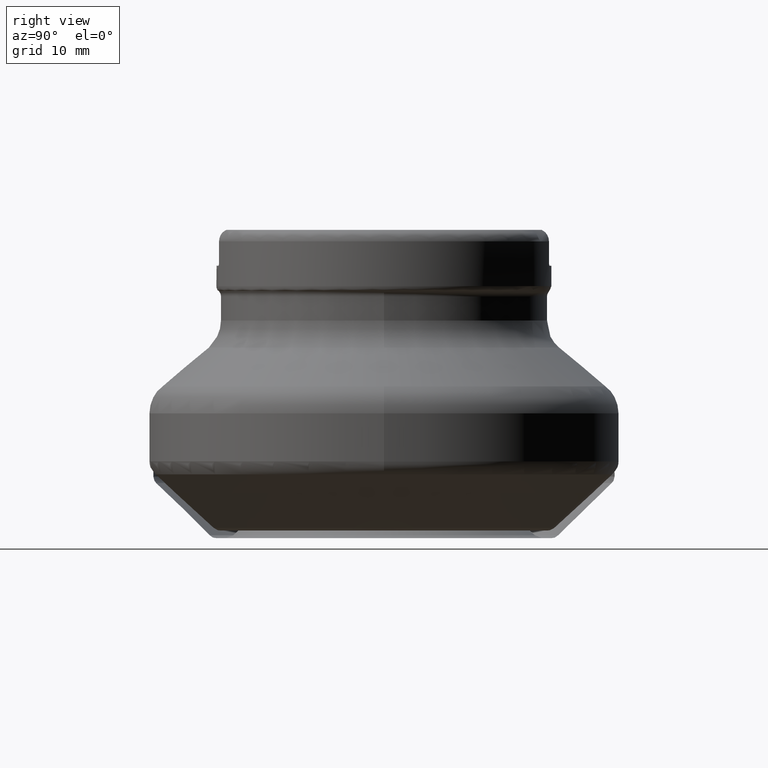
[diagram: clean part render]
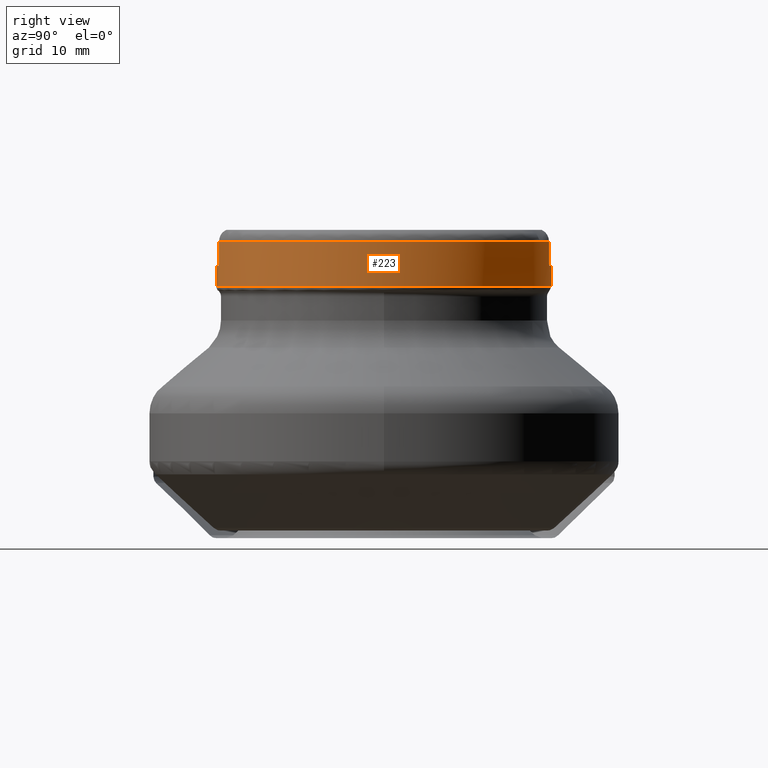
[diagram: same view with one face highlighted and labeled with its STEP entity id]
A machine part, right view. The second image highlights one B-rep face of the part: STEP entity #223.
In plain terms, the highlighted cylindrical surface (bore or boss wall) has radius 19 mm, axis along (0, 0, 1).
Its self-contained STEP definition (entity closure, byte-faithful):
#223=ADVANCED_FACE('',(#372,#373),#297,.T.);
#297=CYLINDRICAL_SURFACE('',#1179,19.);
#308=LINE('',#1791,#340);
#309=LINE('',#1829,#341);
#310=LINE('',#1833,#342);
#311=LINE('',#1871,#343);
#340=VECTOR('',#1299,1.);
#341=VECTOR('',#1302,1.);
#342=VECTOR('',#1305,1.);
#343=VECTOR('',#1308,1.);
#372=FACE_BOUND('',#476,.T.);
#373=FACE_BOUND('',#477,.T.);
#476=EDGE_LOOP('',(#602));
#477=EDGE_LOOP('',(#603,#604,#605,#606,#607,#608,#609,#610,#611,#612,#613,
#614));
#602=ORIENTED_EDGE('',*,*,#931,.T.);
#603=ORIENTED_EDGE('',*,*,#932,.T.);
#604=ORIENTED_EDGE('',*,*,#933,.T.);
#605=ORIENTED_EDGE('',*,*,#934,.F.);
#606=ORIENTED_EDGE('',*,*,#935,.T.);
#607=ORIENTED_EDGE('',*,*,#936,.F.);
#608=ORIENTED_EDGE('',*,*,#937,.T.);
#609=ORIENTED_EDGE('',*,*,#938,.T.);
#610=ORIENTED_EDGE('',*,*,#939,.T.);
#611=ORIENTED_EDGE('',*,*,#940,.F.);
#612=ORIENTED_EDGE('',*,*,#941,.T.);
#613=ORIENTED_EDGE('',*,*,#942,.F.);
#614=ORIENTED_EDGE('',*,*,#943,.T.);
#836=VERTEX_POINT('',#1787);
#837=VERTEX_POINT('',#1789);
#838=VERTEX_POINT('',#1790);
#839=VERTEX_POINT('',#1792);
#840=VERTEX_POINT('',#1809);
#841=VERTEX_POINT('',#1811);
#842=VERTEX_POINT('',#1828);
#843=VERTEX_POINT('',#1830);
#844=VERTEX_POINT('',#1832);
#845=VERTEX_POINT('',#1834);
#846=VERTEX_POINT('',#1851);
#847=VERTEX_POINT('',#1853);
#848=VERTEX_POINT('',#1870);
#931=EDGE_CURVE('',#836,#836,#1048,.T.);
#932=EDGE_CURVE('',#837,#838,#1049,.T.);
#933=EDGE_CURVE('',#838,#839,#308,.T.);
#934=EDGE_CURVE('',#840,#839,#1133,.T.);
#935=EDGE_CURVE('',#840,#841,#1050,.T.);
#936=EDGE_CURVE('',#842,#841,#1134,.T.);
#937=EDGE_CURVE('',#842,#843,#309,.T.);
#938=EDGE_CURVE('',#843,#844,#1051,.T.);
#939=EDGE_CURVE('',#844,#845,#310,.T.);
#940=EDGE_CURVE('',#846,#845,#1135,.T.);
#941=EDGE_CURVE('',#846,#847,#1052,.T.);
#942=EDGE_CURVE('',#848,#847,#1136,.T.);
#943=EDGE_CURVE('',#848,#837,#311,.T.);
#1048=CIRCLE('',#1174,19.);
#1049=CIRCLE('',#1175,19.);
#1050=CIRCLE('',#1176,19.);
#1051=CIRCLE('',#1177,19.);
#1052=CIRCLE('',#1178,19.);
#1133=B_SPLINE_CURVE_WITH_KNOTS('',3,(#1793,#1794,#1795,#1796,#1797,#1798,
#1799,#1800,#1801,#1802,#1803,#1804,#1805,#1806,#1807,#1808),
 .UNSPECIFIED.,.F.,.F.,(4,3,3,3,3,4),(0.,0.218575669752384,0.43720464634885,
0.654890618854931,0.869691156018635,1.),.UNSPECIFIED.);
#1134=B_SPLINE_CURVE_WITH_KNOTS('',3,(#1812,#1813,#1814,#1815,#1816,#1817,
#1818,#1819,#1820,#1821,#1822,#1823,#1824,#1825,#1826,#1827),
 .UNSPECIFIED.,.F.,.F.,(4,3,3,3,3,4),(0.,0.211005456244585,0.421910135302444,
0.634397172635476,0.850056225015331,1.),.UNSPECIFIED.);
#1135=B_SPLINE_CURVE_WITH_KNOTS('',3,(#1835,#1836,#1837,#1838,#1839,#1840,
#1841,#1842,#1843,#1844,#1845,#1846,#1847,#1848,#1849,#1850),
 .UNSPECIFIED.,.F.,.F.,(4,3,3,3,3,4),(0.,0.218575669752383,0.437204646348847,
0.654890618854928,0.869691156018628,1.),.UNSPECIFIED.);
#1136=B_SPLINE_CURVE_WITH_KNOTS('',3,(#1854,#1855,#1856,#1857,#1858,#1859,
#1860,#1861,#1862,#1863,#1864,#1865,#1866,#1867,#1868,#1869),
 .UNSPECIFIED.,.F.,.F.,(4,3,3,3,3,4),(0.,0.211005456244586,0.42191013530245,
0.634397172635481,0.85005622501534,1.),.UNSPECIFIED.);
#1174=AXIS2_PLACEMENT_3D('',#1786,#1295,#1296);
#1175=AXIS2_PLACEMENT_3D('',#1788,#1297,#1298);
#1176=AXIS2_PLACEMENT_3D('',#1810,#1300,#1301);
#1177=AXIS2_PLACEMENT_3D('',#1831,#1303,#1304);
#1178=AXIS2_PLACEMENT_3D('',#1852,#1306,#1307);
#1179=AXIS2_PLACEMENT_3D('',#1872,#1309,#1310);
#1295=DIRECTION('',(1.17145536458252E-15,0.,1.));
#1296=DIRECTION('',(-1.,0.,1.09561482693272E-15));
#1297=DIRECTION('',(-1.17145536458252E-15,0.,-1.));
#1298=DIRECTION('',(1.,0.,-1.09561482693272E-15));
#1299=DIRECTION('',(-1.17145536458252E-15,0.,-1.));
#1300=DIRECTION('',(-1.17145536458252E-15,3.51436609374757E-15,-1.));
#1301=DIRECTION('',(4.2167729308689E-30,1.,3.46944695195362E-15));
#1302=DIRECTION('',(1.17145536458252E-15,0.,1.));
#1303=DIRECTION('',(-1.17145536458252E-15,0.,-1.));
#1304=DIRECTION('',(1.,0.,-1.09561482693272E-15));
#1305=DIRECTION('',(-1.17145536458252E-15,0.,-1.));
#1306=DIRECTION('',(-1.17145536458252E-15,3.51436609374757E-15,-1.));
#1307=DIRECTION('',(4.2167729308689E-30,1.,3.46944695195362E-15));
#1308=DIRECTION('',(1.17145536458252E-15,0.,1.));
#1309=DIRECTION('',(1.17145536458252E-15,0.,1.));
#1310=DIRECTION('',(1.,0.,-1.17145536458252E-15));
#1786=CARTESIAN_POINT('',(3.34525138251216E-14,0.,28.5563708498985));
#1787=CARTESIAN_POINT('',(-19.,0.,28.5563708498985));
#1788=CARTESIAN_POINT('',(3.93901866340874E-14,0.,33.625));
#1789=CARTESIAN_POINT('',(3.37500000000004,18.6978441270645,33.625));
#1790=CARTESIAN_POINT('',(3.37500000000004,-18.6978441270645,33.625));
#1791=CARTESIAN_POINT('',(3.37500000000002,-18.6978441270645,-2.67294803921753E-15));
#1792=CARTESIAN_POINT('',(3.37500000000004,-18.6978441270645,31.2609999999999));
#1793=CARTESIAN_POINT('',(2.97500000000004,-18.7656434741791,30.8609999999999));
#1794=CARTESIAN_POINT('',(3.02028066068828,-18.7584649318747,30.8609999999999));
#1795=CARTESIAN_POINT('',(3.06615773842595,-18.7510146092092,30.8689005048723));
#1796=CARTESIAN_POINT('',(3.10884297403228,-18.7439348953951,30.8840569561562));
#1797=CARTESIAN_POINT('',(3.15153363144967,-18.7368542823269,30.8992153325885));
#1798=CARTESIAN_POINT('',(3.19221797700583,-18.7299499184179,30.92205777362));
#1799=CARTESIAN_POINT('',(3.22746904554651,-18.7238736259365,30.9507430403022));
#1800=CARTESIAN_POINT('',(3.26256329547821,-18.7178243645713,30.9793006971331));
#1801=CARTESIAN_POINT('',(3.29325234022388,-18.7124307235746,31.0144605957939));
#1802=CARTESIAN_POINT('',(3.31685427128723,-18.708246249797,31.0533087454833));
#1803=CARTESIAN_POINT('',(3.34014580542421,-18.7041168074401,31.0916459901019));
#1804=CARTESIAN_POINT('',(3.35718347732016,-18.7010536506071,31.1346579951569));
#1805=CARTESIAN_POINT('',(3.36644434219076,-18.6993864201725,31.1787119269463));
#1806=CARTESIAN_POINT('',(3.37211463061018,-18.6983656000269,31.205685487488));
#1807=CARTESIAN_POINT('',(3.3750000000008,-18.6978441270647,31.2334179911384));
#1808=CARTESIAN_POINT('',(3.37500000000081,-18.6978441270647,31.2609999999998));
#1809=CARTESIAN_POINT('',(2.97500000000004,-18.7656434741791,30.8609999999999));
#1810=CARTESIAN_POINT('',(3.61522840063813E-14,0.,30.861));
#1811=CARTESIAN_POINT('',(-2.97499999999996,-18.7656434741791,30.8609999999999));
#1812=CARTESIAN_POINT('',(-3.37499999999996,-18.6978441270645,31.2609999999999));
#1813=CARTESIAN_POINT('',(-3.37499999999996,-18.6978441270645,31.2167419719662));
#1814=CARTESIAN_POINT('',(-3.36743935073176,-18.6992130291763,31.1718741797174));
#1815=CARTESIAN_POINT('',(-3.35298341175933,-18.7018047856475,31.1301239501102));
#1816=CARTESIAN_POINT('',(-3.33853133045866,-18.7043958504897,31.0883848618534));
#1817=CARTESIAN_POINT('',(-3.31680214255493,-18.70827581702,31.0486177372137));
#1818=CARTESIAN_POINT('',(-3.28964149099136,-18.7130504958638,31.0140167371121));
#1819=CARTESIAN_POINT('',(-3.26227521577634,-18.7178613221062,30.9791537851215));
#1820=CARTESIAN_POINT('',(-3.22866180359596,-18.7237058192971,30.9485848924336));
#1821=CARTESIAN_POINT('',(-3.19155820363931,-18.7300281962623,30.9246927826577));
#1822=CARTESIAN_POINT('',(-3.15390821116758,-18.7364436773861,30.9004488345166));
#1823=CARTESIAN_POINT('',(-3.11164322712219,-18.7435219349811,30.8824177265081));
#1824=CARTESIAN_POINT('',(-3.06819716881311,-18.7506310862671,30.8720086276982));
#1825=CARTESIAN_POINT('',(-3.03777240774883,-18.7556095408764,30.864719258846));
#1826=CARTESIAN_POINT('',(-3.00628867382795,-18.760683143095,30.8609999999999));
#1827=CARTESIAN_POINT('',(-2.97499999999996,-18.7656434741791,30.8609999999999));
#1828=CARTESIAN_POINT('',(-3.37499999999996,-18.6978441270645,31.2609999999999));
#1829=CARTESIAN_POINT('',(-3.375,-18.6978441270645,3.95366185546602E-15));
#1830=CARTESIAN_POINT('',(-3.37499999999996,-18.6978441270645,33.625));
#1831=CARTESIAN_POINT('',(3.93901866340874E-14,0.,33.625));
#1832=CARTESIAN_POINT('',(-3.37499999999996,18.6978441270645,33.625));
#1833=CARTESIAN_POINT('',(-3.375,18.6978441270645,3.95366185546602E-15));
#1834=CARTESIAN_POINT('',(-3.37499999999996,18.6978441270645,31.2610000000001));
#1835=CARTESIAN_POINT('',(-2.97499999999996,18.7656434741791,30.8610000000001));
#1836=CARTESIAN_POINT('',(-3.0202806606882,18.7584649318747,30.8610000000001));
#1837=CARTESIAN_POINT('',(-3.06615773842588,18.7510146092092,30.8689005048724));
#1838=CARTESIAN_POINT('',(-3.10884297403221,18.7439348953951,30.8840569561563));
#1839=CARTESIAN_POINT('',(-3.1515336314496,18.7368542823269,30.8992153325886));
#1840=CARTESIAN_POINT('',(-3.19221797700575,18.7299499184179,30.9220577736201));
#1841=CARTESIAN_POINT('',(-3.22746904554644,18.7238736259365,30.9507430403024));
#1842=CARTESIAN_POINT('',(-3.26256329547814,18.7178243645713,30.9793006971332));
#1843=CARTESIAN_POINT('',(-3.2932523402238,18.7124307235746,31.0144605957941));
#1844=CARTESIAN_POINT('',(-3.31685427128715,18.708246249797,31.0533087454834));
#1845=CARTESIAN_POINT('',(-3.34014580542413,18.7041168074401,31.091645990102));
#1846=CARTESIAN_POINT('',(-3.35718347732008,18.7010536506071,31.134657995157));
#1847=CARTESIAN_POINT('',(-3.36644434219068,18.6993864201725,31.1787119269464));
#1848=CARTESIAN_POINT('',(-3.37211463061011,18.6983656000269,31.2056854874882));
#1849=CARTESIAN_POINT('',(-3.37500000000072,18.6978441270647,31.2334179911386));
#1850=CARTESIAN_POINT('',(-3.37500000000073,18.6978441270647,31.2609999999999));
#1851=CARTESIAN_POINT('',(-2.97499999999996,18.7656434741791,30.8610000000001));
#1852=CARTESIAN_POINT('',(3.61522840063813E-14,0.,30.861));
#1853=CARTESIAN_POINT('',(2.97500000000004,18.7656434741791,30.8610000000001));
#1854=CARTESIAN_POINT('',(3.37500000000004,18.6978441270645,31.2610000000001));
#1855=CARTESIAN_POINT('',(3.37500000000004,18.6978441270645,31.2167419719663));
#1856=CARTESIAN_POINT('',(3.36743935073183,18.6992130291763,31.1718741797175));
#1857=CARTESIAN_POINT('',(3.35298341175941,18.7018047856475,31.1301239501103));
#1858=CARTESIAN_POINT('',(3.33853133045874,18.7043958504897,31.0883848618535));
#1859=CARTESIAN_POINT('',(3.31680214255501,18.70827581702,31.0486177372138));
#1860=CARTESIAN_POINT('',(3.28964149099143,18.7130504958638,31.0140167371122));
#1861=CARTESIAN_POINT('',(3.26227521577641,18.7178613221062,30.9791537851217));
#1862=CARTESIAN_POINT('',(3.22866180359603,18.7237058192971,30.9485848924337));
#1863=CARTESIAN_POINT('',(3.19155820363938,18.7300281962623,30.9246927826578));
#1864=CARTESIAN_POINT('',(3.15390821116765,18.7364436773861,30.9004488345167));
#1865=CARTESIAN_POINT('',(3.11164322712226,18.7435219349811,30.8824177265082));
#1866=CARTESIAN_POINT('',(3.06819716881318,18.7506310862671,30.8720086276983));
#1867=CARTESIAN_POINT('',(3.0377724077489,18.7556095408764,30.8647192588461));
#1868=CARTESIAN_POINT('',(3.00628867382803,18.760683143095,30.8610000000001));
#1869=CARTESIAN_POINT('',(2.97500000000004,18.7656434741791,30.8610000000001));
#1870=CARTESIAN_POINT('',(3.37500000000004,18.6978441270645,31.2610000000001));
#1871=CARTESIAN_POINT('',(3.37500000000002,18.6978441270645,-2.67294803921753E-15));
#1872=CARTESIAN_POINT('',(0.,0.,0.));